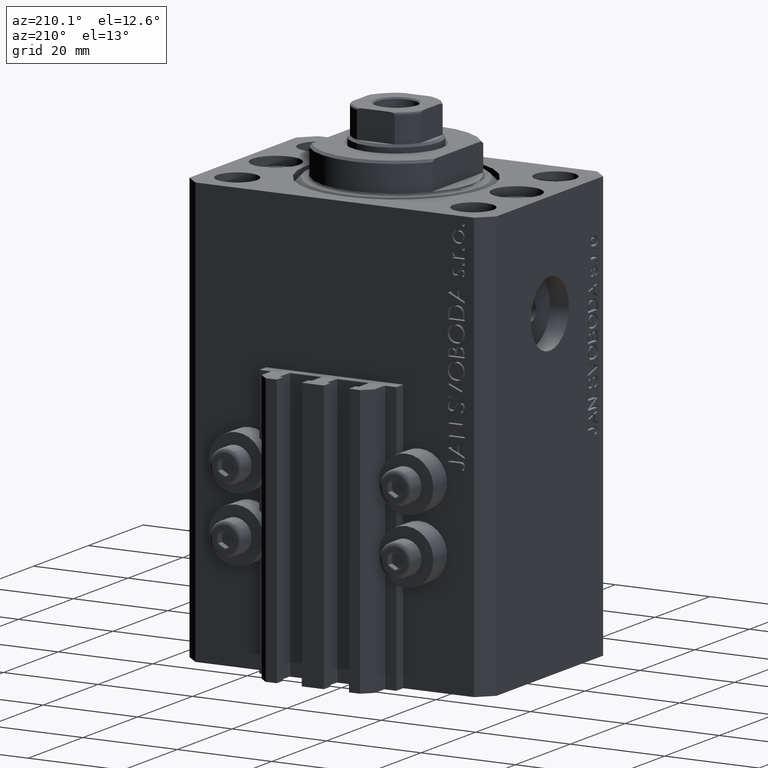
[diagram: clean part render]
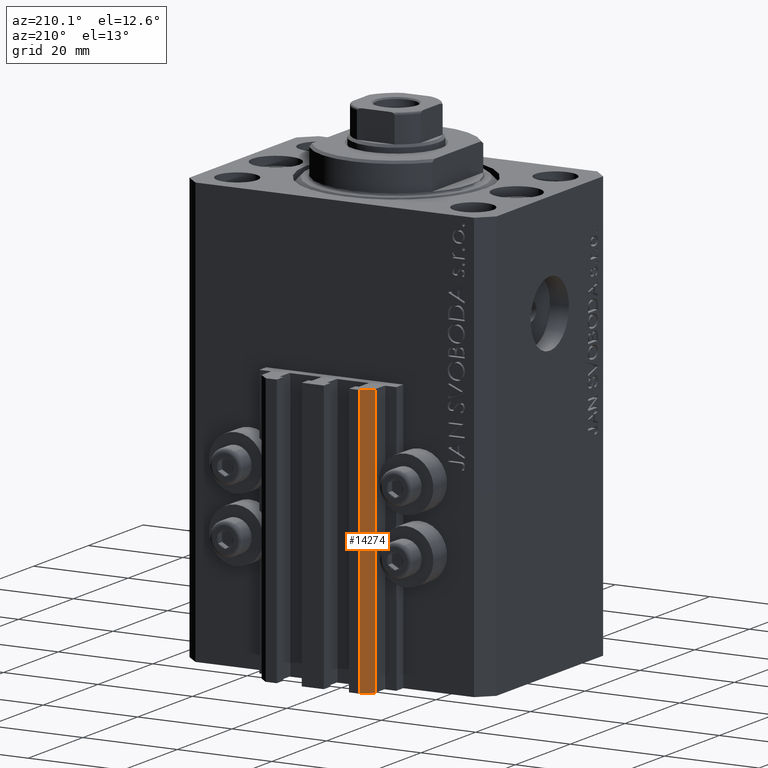
[diagram: same view with one face highlighted and labeled with its STEP entity id]
A machine part, auxiliary view. The second image highlights one B-rep face of the part: STEP entity #14274.
In plain terms, the highlighted planar face has unit normal (-0.7071, 0.7071, 0).
Its self-contained STEP definition (entity closure, byte-faithful):
#138 = CARTESIAN_POINT ( 'NONE',  ( -10.00000000000000000, 30.49999999999948841, -90.00000000000000000 ) ) ;
#1623 = ORIENTED_EDGE ( 'NONE', *, *, #4387, .F. ) ;
#4354 = EDGE_CURVE ( 'NONE', #18057, #35961, #17548, .T. ) ;
#4387 = EDGE_CURVE ( 'NONE', #30278, #6720, #32601, .T. ) ;
#5218 = DIRECTION ( 'NONE',  ( -0.7071067811865472397, -0.7071067811865479058, 0.000000000000000000 ) ) ;
#6643 = LINE ( 'NONE', #39093, #33299 ) ;
#6720 = VERTEX_POINT ( 'NONE', #16139 ) ;
#7294 = PLANE ( 'NONE',  #14330 ) ;
#9286 = EDGE_CURVE ( 'NONE', #30278, #18057, #6643, .T. ) ;
#9563 = VECTOR ( 'NONE', #46678, 1000.000000000000000 ) ;
#11808 = CARTESIAN_POINT ( 'NONE',  ( -10.00000000000000000, 30.49999999999948841, -90.00000000000000000 ) ) ;
#14274 = ADVANCED_FACE ( 'NONE', ( #39995 ), #7294, .T. ) ;
#14330 = AXIS2_PLACEMENT_3D ( 'NONE', #138, #14681, #29251 ) ;
#14651 = ORIENTED_EDGE ( 'NONE', *, *, #41395, .F. ) ;
#14681 = DIRECTION ( 'NONE',  ( -0.7071067811865479058, 0.7071067811865472397, 0.000000000000000000 ) ) ;
#16139 = CARTESIAN_POINT ( 'NONE',  ( -10.00000000000000000, 30.49999999999948841, -33.00000000000000000 ) ) ;
#17130 = DIRECTION ( 'NONE',  ( -0.7071067811865472397, -0.7071067811865479058, 0.000000000000000000 ) ) ;
#17548 = LINE ( 'NONE', #32116, #9563 ) ;
#18057 = VERTEX_POINT ( 'NONE', #40930 ) ;
#18220 = CARTESIAN_POINT ( 'NONE',  ( -10.00000000000000000, 30.49999999999948841, -90.00000000000000000 ) ) ;
#20965 = ORIENTED_EDGE ( 'NONE', *, *, #9286, .T. ) ;
#23166 = VECTOR ( 'NONE', #5218, 999.9999999999998863 ) ;
#23345 = CARTESIAN_POINT ( 'NONE',  ( -10.00000000000000000, 30.49999999999948841, -33.00000000000000000 ) ) ;
#23790 = CARTESIAN_POINT ( 'NONE',  ( -12.00000000000000000, 28.49999999999948841, -33.00000000000000000 ) ) ;
#29251 = DIRECTION ( 'NONE',  ( -0.7071067811865472397, -0.7071067811865479058, 0.000000000000000000 ) ) ;
#30278 = VERTEX_POINT ( 'NONE', #18220 ) ;
#32116 = CARTESIAN_POINT ( 'NONE',  ( -12.00000000000000000, 28.49999999999948841, -90.00000000000000000 ) ) ;
#32601 = LINE ( 'NONE', #11808, #45408 ) ;
#33299 = VECTOR ( 'NONE', #17130, 999.9999999999998863 ) ;
#33637 = LINE ( 'NONE', #23345, #23166 ) ;
#35961 = VERTEX_POINT ( 'NONE', #23790 ) ;
#37181 = ORIENTED_EDGE ( 'NONE', *, *, #4354, .T. ) ;
#39093 = CARTESIAN_POINT ( 'NONE',  ( -10.00000000000000000, 30.49999999999948841, -90.00000000000000000 ) ) ;
#39995 = FACE_OUTER_BOUND ( 'NONE', #41272, .T. ) ;
#40930 = CARTESIAN_POINT ( 'NONE',  ( -12.00000000000000000, 28.49999999999948841, -90.00000000000000000 ) ) ;
#41272 = EDGE_LOOP ( 'NONE', ( #14651, #1623, #20965, #37181 ) ) ;
#41395 = EDGE_CURVE ( 'NONE', #6720, #35961, #33637, .T. ) ;
#43567 = DIRECTION ( 'NONE',  ( 0.000000000000000000, 0.000000000000000000, 1.000000000000000000 ) ) ;
#45408 = VECTOR ( 'NONE', #43567, 1000.000000000000000 ) ;
#46678 = DIRECTION ( 'NONE',  ( 0.000000000000000000, 0.000000000000000000, 1.000000000000000000 ) ) ;